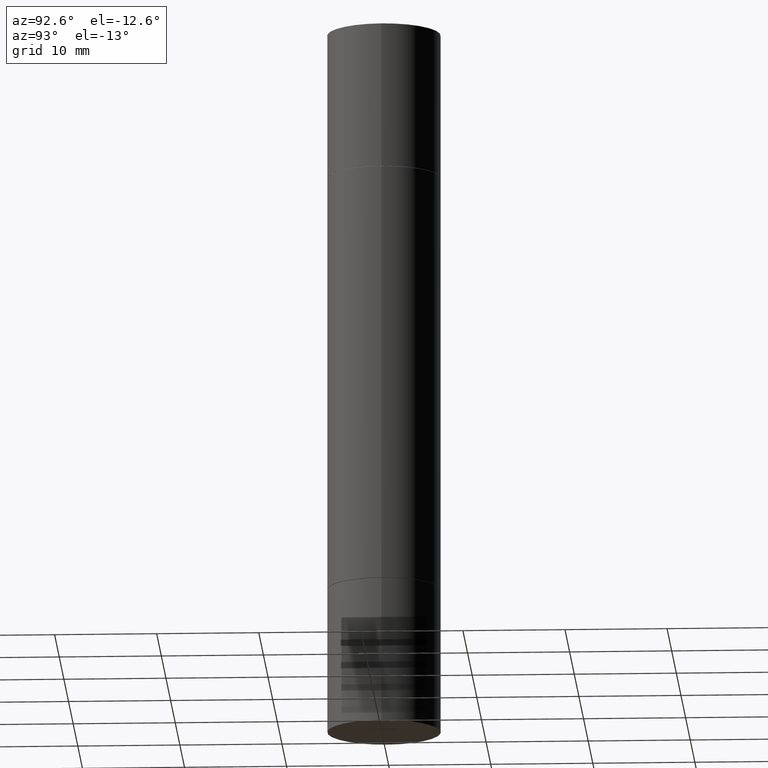
[diagram: clean part render]
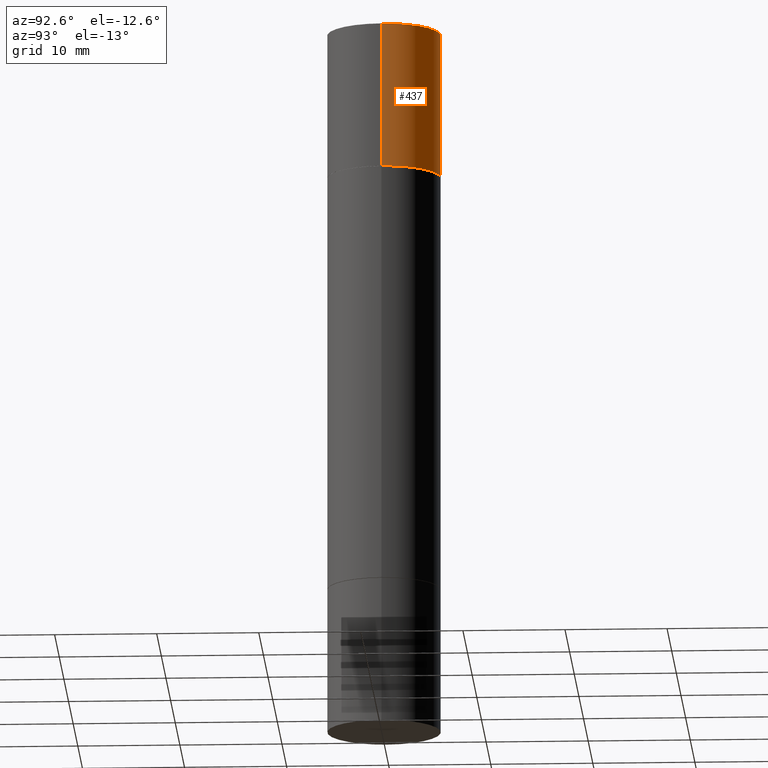
[diagram: same view with one face highlighted and labeled with its STEP entity id]
A machine part, auxiliary view. The second image highlights one B-rep face of the part: STEP entity #437.
In plain terms, the highlighted cylindrical surface (partial cylindrical patch) has radius 5.5562 mm, axis along (-0, -0, -1).
Its self-contained STEP definition (entity closure, byte-faithful):
#1 = CIRCLE ( 'NONE', #371, 0.2187500000000000000 ) ;
#16 = CARTESIAN_POINT ( 'NONE',  ( -0.2187500000000000000, -8.102777219780460014E-15, -2.749999999999999556 ) ) ;
#55 = CARTESIAN_POINT ( 'NONE',  ( 0.2187500000000000000, -3.488590022061618704E-15, -0.5619999999999996110 ) ) ;
#86 = EDGE_CURVE ( 'NONE', #184, #289, #473, .T. ) ;
#93 = CARTESIAN_POINT ( 'NONE',  ( -0.2187500000000000000, 5.211692063408171100E-16, -0.5619999999999996110 ) ) ;
#148 = EDGE_CURVE ( 'NONE', #184, #232, #671, .T. ) ;
#184 = VERTEX_POINT ( 'NONE', #483 ) ;
#194 = EDGE_LOOP ( 'NONE', ( #606, #550, #613, #228 ) ) ;
#197 = VECTOR ( 'NONE', #343, 39.37007874015748143 ) ;
#201 = DIRECTION ( 'NONE',  ( -2.445468806185136877E-29, -3.492890411551753071E-15, -1.000000000000000000 ) ) ;
#214 = AXIS2_PLACEMENT_3D ( 'NONE', #337, #450, #653 ) ;
#228 = ORIENTED_EDGE ( 'NONE', *, *, #594, .T. ) ;
#232 = VERTEX_POINT ( 'NONE', #629 ) ;
#264 = CARTESIAN_POINT ( 'NONE',  ( 6.725039217009124520E-29, 1.937474974335603146E-18, 5.463695987328526437E-16 ) ) ;
#289 = VERTEX_POINT ( 'NONE', #55 ) ;
#337 = CARTESIAN_POINT ( 'NONE',  ( 0.000000000000000000, -9.603511156792982543E-15, -2.749999999999999556 ) ) ;
#343 = DIRECTION ( 'NONE',  ( -2.445468806185136877E-29, -3.492890411551753071E-15, -1.000000000000000000 ) ) ;
#351 = FACE_OUTER_BOUND ( 'NONE', #194, .T. ) ;
#364 = DIRECTION ( 'NONE',  ( 1.000000000000000000, -6.982962677686267499E-15, 0.000000000000000000 ) ) ;
#371 = AXIS2_PLACEMENT_3D ( 'NONE', #662, #573, #364 ) ;
#378 = VECTOR ( 'NONE', #201, 39.37007874015748143 ) ;
#382 = EDGE_CURVE ( 'NONE', #232, #649, #401, .T. ) ;
#386 = AXIS2_PLACEMENT_3D ( 'NONE', #264, #535, #436 ) ;
#401 = LINE ( 'NONE', #16, #197 ) ;
#436 = DIRECTION ( 'NONE',  ( 1.000000000000000000, -6.982962677686266711E-15, 0.000000000000000000 ) ) ;
#437 = ADVANCED_FACE ( 'NONE', ( #351 ), #563, .T. ) ;
#450 = DIRECTION ( 'NONE',  ( -2.445468806185136597E-29, -3.492890411551752677E-15, -1.000000000000000000 ) ) ;
#473 = LINE ( 'NONE', #674, #378 ) ;
#483 = CARTESIAN_POINT ( 'NONE',  ( 0.2187500000000000000, -1.525585610769535201E-15, 5.463695987328526437E-16 ) ) ;
#535 = DIRECTION ( 'NONE',  ( 2.445468806185136597E-29, 3.492890411551752677E-15, 1.000000000000000000 ) ) ;
#550 = ORIENTED_EDGE ( 'NONE', *, *, #148, .F. ) ;
#563 = CYLINDRICAL_SURFACE ( 'NONE', #214, 0.2187500000000000000 ) ;
#573 = DIRECTION ( 'NONE',  ( 2.445468806185136597E-29, 3.492890411551752677E-15, 1.000000000000000000 ) ) ;
#594 = EDGE_CURVE ( 'NONE', #289, #649, #1, .T. ) ;
#606 = ORIENTED_EDGE ( 'NONE', *, *, #382, .F. ) ;
#613 = ORIENTED_EDGE ( 'NONE', *, *, #86, .T. ) ;
#629 = CARTESIAN_POINT ( 'NONE',  ( -0.2187500000000000000, 5.211692063408169128E-16, 5.463695987328561936E-16 ) ) ;
#649 = VERTEX_POINT ( 'NONE', #93 ) ;
#653 = DIRECTION ( 'NONE',  ( 1.000000000000000000, -6.982962677686262766E-15, 0.000000000000000000 ) ) ;
#662 = CARTESIAN_POINT ( 'NONE',  ( 5.350685747933077986E-29, -1.961066936317747467E-15, -0.5619999999999996110 ) ) ;
#671 = CIRCLE ( 'NONE', #386, 0.2187500000000000000 ) ;
#674 = CARTESIAN_POINT ( 'NONE',  ( 0.2187500000000000000, -1.113103424253685260E-14, -2.749999999999999556 ) ) ;